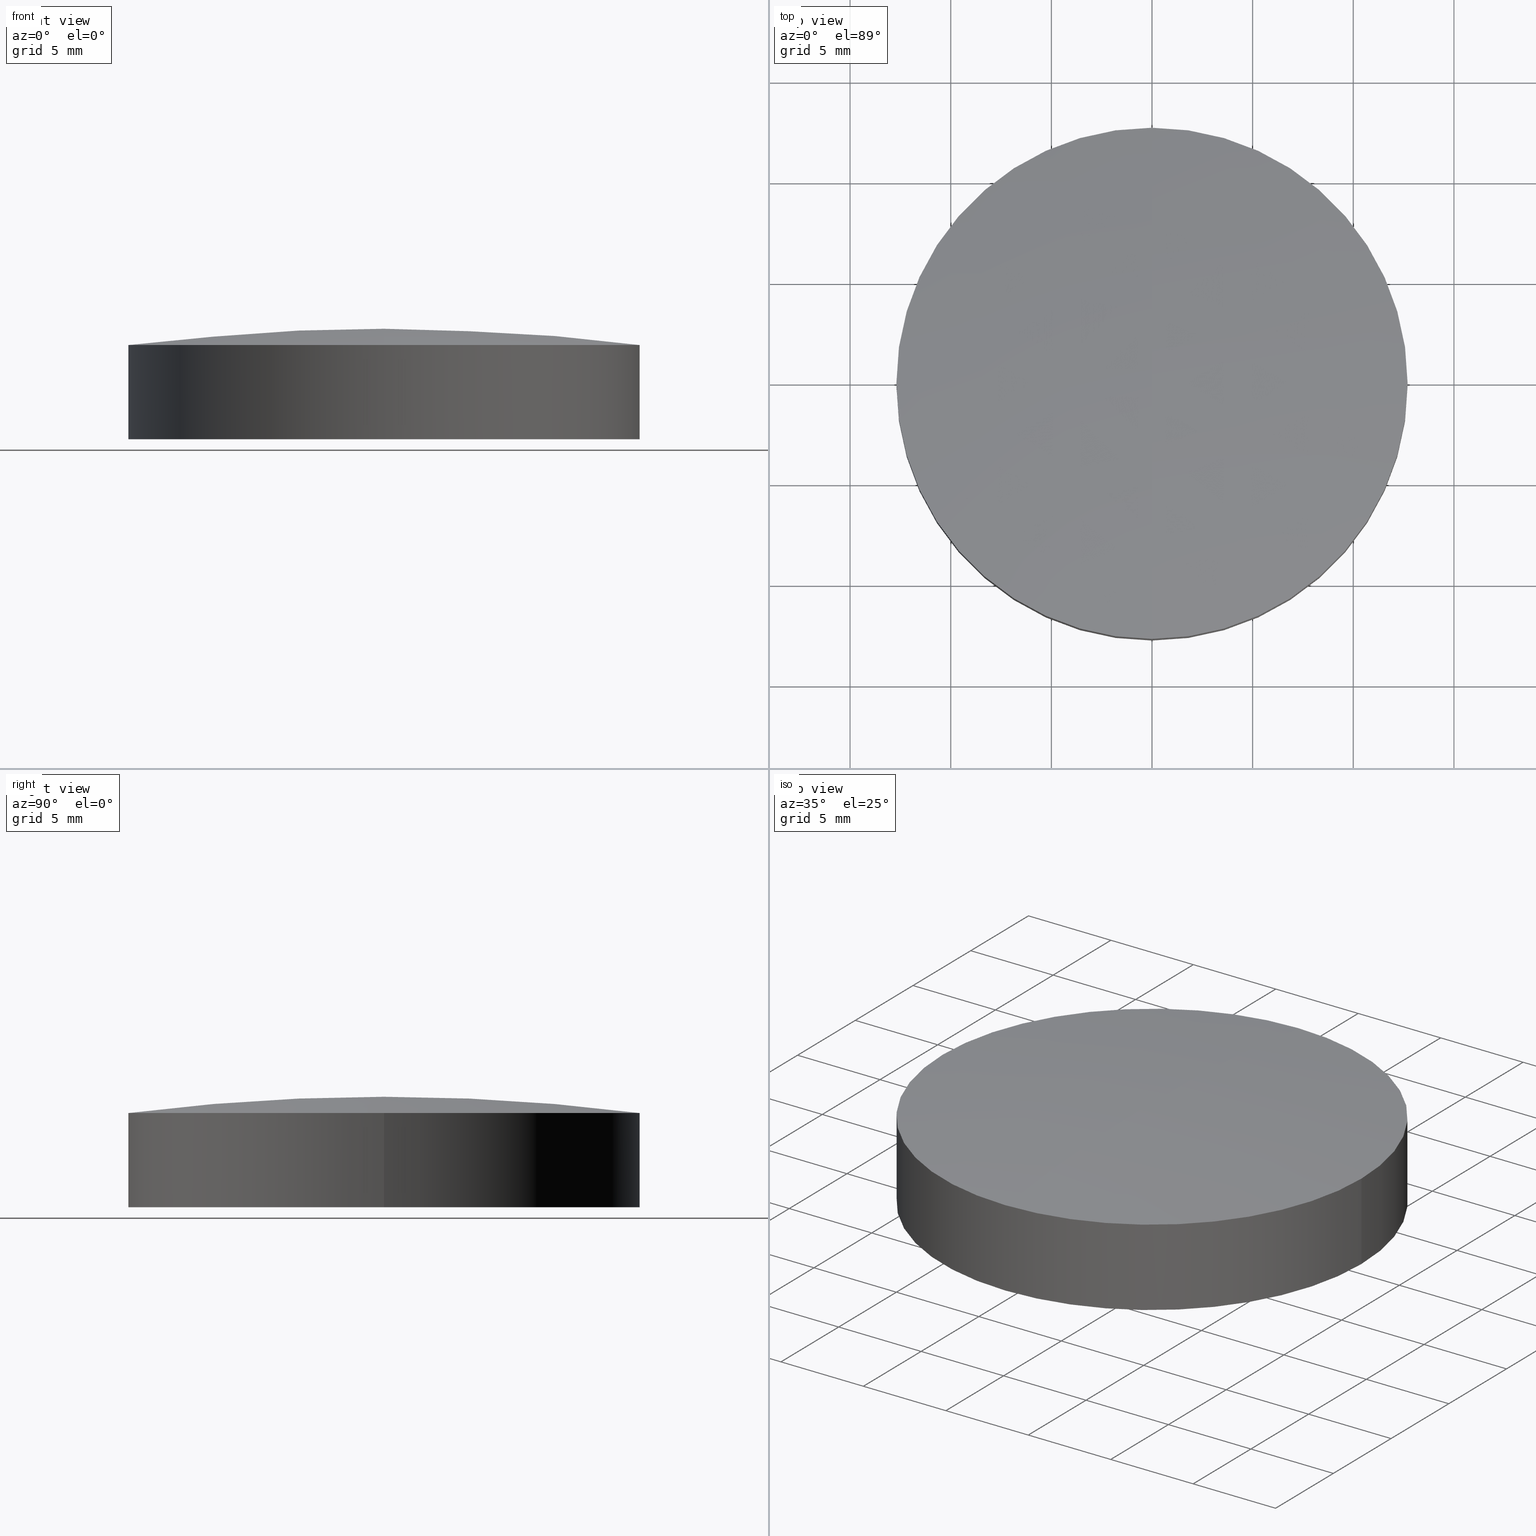
[diagram: canonical four-view strip — front | top / right | iso, engineering-drawing reading convention]
A machine part, canonical four-view strip (front | top / right | iso — engineering-drawing reading convention). The complete STEP part file that produces these views, byte-faithful:
ISO-10303-21;
HEADER;
FILE_DESCRIPTION (( 'STEP AP214' ),
    '1' );
FILE_NAME ('4887-E0W.STEP',
    '2009-12-21T17:10:23',
    ( ' ' ),
    ( ' ' ),
    'SwSTEP 2.0',
    'SolidWorks 2009',
    '' );
FILE_SCHEMA (( 'AUTOMOTIVE_DESIGN' ));
ENDSEC;

DATA;
#1 = SPHERICAL_SURFACE ( 'NONE', #3, 100.0000000000000000 ) ;
#2 = CIRCLE ( 'NONE', #4, 12.70000000000000100 ) ;
#3 = AXIS2_PLACEMENT_3D ( 'NONE', #5, #9, #8 ) ;
#4 = AXIS2_PLACEMENT_3D ( 'NONE', #10, #6, #7 ) ;
#5 = CARTESIAN_POINT ( 'NONE',  ( 0.0000000000000000000, 0.0000000000000000000, -97.25569719235952000 ) ) ;
#6 = DIRECTION ( 'NONE',  ( -0.0000000000000000000, -0.0000000000000000000, 1.000000000000000000 ) ) ;
#7 = DIRECTION ( 'NONE',  ( 1.000000000000000000, 0.0000000000000000000, 0.0000000000000000000 ) ) ;
#8 = DIRECTION ( 'NONE',  ( 0.0000000000000000000, 1.000000000000000000, 0.0000000000000000000 ) ) ;
#9 = DIRECTION ( 'NONE',  ( -1.000000000000000000, 0.0000000000000000000, 0.0000000000000000000 ) ) ;
#10 = CARTESIAN_POINT ( 'NONE',  ( 0.0000000000000000000, 0.0000000000000000000, 1.934574508044651300 ) ) ;
#11 = DIRECTION ( 'NONE',  ( 1.000000000000000000, 0.0000000000000000000, 0.0000000000000000000 ) ) ;
#12 = MECHANICAL_DESIGN_GEOMETRIC_PRESENTATION_REPRESENTATION (  '', ( #31 ), #157 ) ;
#13 = LINE ( 'NONE', #14, #16 ) ;
#14 = CARTESIAN_POINT ( 'NONE',  ( 12.70000000000000100, 0.0000000000000000000, 10.14940656248153400 ) ) ;
#15 = DIRECTION ( 'NONE',  ( -0.0000000000000000000, -0.0000000000000000000, 1.000000000000000000 ) ) ;
#16 = VECTOR ( 'NONE', #15, 1000.000000000000000 ) ;
#17 =( LENGTH_UNIT ( ) NAMED_UNIT ( * ) SI_UNIT ( .MILLI., .METRE. ) );
#18 =( NAMED_UNIT ( * ) PLANE_ANGLE_UNIT ( ) SI_UNIT ( $, .RADIAN. ) );
#19 = AXIS2_PLACEMENT_3D ( 'NONE', #21, #22, #11 ) ;
#20 = CIRCLE ( 'NONE', #19, 12.70000000000000100 ) ;
#21 = CARTESIAN_POINT ( 'NONE',  ( 0.0000000000000000000, 0.0000000000000000000, 1.934574508044651300 ) ) ;
#22 = DIRECTION ( 'NONE',  ( -0.0000000000000000000, -0.0000000000000000000, 1.000000000000000000 ) ) ;
#23 =( NAMED_UNIT ( * ) SI_UNIT ( $, .STERADIAN. ) SOLID_ANGLE_UNIT ( ) );
#24 = UNCERTAINTY_MEASURE_WITH_UNIT (LENGTH_MEASURE( 1.000000000000000100E-005 ), #17, 'distance_accuracy_value', 'NONE');
#25 = DIRECTION ( 'NONE',  ( -0.0000000000000000000, -0.0000000000000000000, 1.000000000000000000 ) ) ;
#26 = CARTESIAN_POINT ( 'NONE',  ( 0.0000000000000000000, 12.69999999999999200, 1.934574508044653700 ) ) ;
#27 = UNCERTAINTY_MEASURE_WITH_UNIT (LENGTH_MEASURE( 1.000000000000000100E-005 ), #50, 'distance_accuracy_value', 'NONE');
#28 =( NAMED_UNIT ( * ) SI_UNIT ( $, .STERADIAN. ) SOLID_ANGLE_UNIT ( ) );
#29 =( NAMED_UNIT ( * ) PLANE_ANGLE_UNIT ( ) SI_UNIT ( $, .RADIAN. ) );
#30 = PRESENTATION_LAYER_ASSIGNMENT (  '', '', ( #31 ) ) ;
#31 = STYLED_ITEM ( 'NONE', ( #32 ), #273 ) ;
#32 = PRESENTATION_STYLE_ASSIGNMENT (( #33 ) ) ;
#33 = SURFACE_STYLE_USAGE ( .BOTH. , #34 ) ;
#34 = SURFACE_SIDE_STYLE ('',( #35 ) ) ;
#35 = SURFACE_STYLE_FILL_AREA ( #36 ) ;
#36 = FILL_AREA_STYLE ('',( #42 ) ) ;
#37 = COLOUR_RGB ( '',0.9568627450980391500, 0.9490196078431372100, 0.9607843137254902200 ) ;
#38 = DIRECTION ( 'NONE',  ( 0.0000000000000000000, 1.000000000000000000, 0.0000000000000000000 ) ) ;
#39 = DIRECTION ( 'NONE',  ( -1.000000000000000000, 0.0000000000000000000, 0.0000000000000000000 ) ) ;
#40 = AXIS2_PLACEMENT_3D ( 'NONE', #64, #39, #38 ) ;
#41 = FACE_OUTER_BOUND ( 'NONE', #285, .T. ) ;
#42 = FILL_AREA_STYLE_COLOUR ( '', #37 ) ;
#43 = CIRCLE ( 'NONE', #63, 100.0000000000000000 ) ;
#44 = FILL_AREA_STYLE_COLOUR ( '', #74 ) ;
#45 = FACE_OUTER_BOUND ( 'NONE', #264, .T. ) ;
#46 = CARTESIAN_POINT ( 'NONE',  ( 0.0000000000000000000, 6.123031769111886300E-015, 2.744302807640486300 ) ) ;
#47 = CARTESIAN_POINT ( 'NONE',  ( -1.555250069354418500E-015, -12.69999999999999200, 1.934574508044653700 ) ) ;
#48 = DIRECTION ( 'NONE',  ( -1.224606353822377300E-016, -1.000000000000000000, 0.0000000000000000000 ) ) ;
#49 = DIRECTION ( 'NONE',  ( 1.000000000000000000, 0.0000000000000000000, 0.0000000000000000000 ) ) ;
#50 =( LENGTH_UNIT ( ) NAMED_UNIT ( * ) SI_UNIT ( .MILLI., .METRE. ) );
#51 = MECHANICAL_DESIGN_GEOMETRIC_PRESENTATION_REPRESENTATION (  '', ( #53 ), #66 ) ;
#52 = PRESENTATION_LAYER_ASSIGNMENT (  '', '', ( #53 ) ) ;
#53 = STYLED_ITEM ( 'NONE', ( #69 ), #271 ) ;
#54 = DIRECTION ( 'NONE',  ( -1.000000000000000000, 1.224606353822377300E-016, 0.0000000000000000000 ) ) ;
#55 = CARTESIAN_POINT ( 'NONE',  ( 0.0000000000000000000, 0.0000000000000000000, -97.25569719235952000 ) ) ;
#56 = AXIS2_PLACEMENT_3D ( 'NONE', #55, #54, #48 ) ;
#57 = CIRCLE ( 'NONE', #56, 100.0000000000000000 ) ;
#58 = AXIS2_PLACEMENT_3D ( 'NONE', #60, #25, #62 ) ;
#59 = CIRCLE ( 'NONE', #58, 12.70000000000000100 ) ;
#60 = CARTESIAN_POINT ( 'NONE',  ( 0.0000000000000000000, 0.0000000000000000000, 1.934574508044651300 ) ) ;
#61 = CARTESIAN_POINT ( 'NONE',  ( 12.70000000000000100, 0.0000000000000000000, 1.934574508044651300 ) ) ;
#62 = DIRECTION ( 'NONE',  ( 1.000000000000000000, 0.0000000000000000000, 0.0000000000000000000 ) ) ;
#63 = AXIS2_PLACEMENT_3D ( 'NONE', #68, #49, #67 ) ;
#64 = CARTESIAN_POINT ( 'NONE',  ( 0.0000000000000000000, 0.0000000000000000000, -97.25569719235952000 ) ) ;
#65 = SPHERICAL_SURFACE ( 'NONE', #40, 100.0000000000000000 ) ;
#66 =( GEOMETRIC_REPRESENTATION_CONTEXT ( 3 ) GLOBAL_UNCERTAINTY_ASSIGNED_CONTEXT ( ( #27 ) ) GLOBAL_UNIT_ASSIGNED_CONTEXT ( ( #50, #29, #28 ) ) REPRESENTATION_CONTEXT ( 'NONE', 'WORKASPACE' ) );
#67 = DIRECTION ( 'NONE',  ( 0.0000000000000000000, 0.0000000000000000000, -1.000000000000000000 ) ) ;
#68 = CARTESIAN_POINT ( 'NONE',  ( 0.0000000000000000000, 0.0000000000000000000, -97.25569719235952000 ) ) ;
#69 = PRESENTATION_STYLE_ASSIGNMENT (( #70 ) ) ;
#70 = SURFACE_STYLE_USAGE ( .BOTH. , #71 ) ;
#71 = SURFACE_SIDE_STYLE ('',( #72 ) ) ;
#72 = SURFACE_STYLE_FILL_AREA ( #73 ) ;
#73 = FILL_AREA_STYLE ('',( #44 ) ) ;
#74 = COLOUR_RGB ( '',0.9568627450980391500, 0.9490196078431372100, 0.9607843137254902200 ) ;
#75 = DIRECTION ( 'NONE',  ( 1.000000000000000000, 0.0000000000000000000, 0.0000000000000000000 ) ) ;
#76 = DIRECTION ( 'NONE',  ( -0.0000000000000000000, -0.0000000000000000000, 1.000000000000000000 ) ) ;
#77 = CARTESIAN_POINT ( 'NONE',  ( 0.0000000000000000000, 0.0000000000000000000, 1.934574508044651300 ) ) ;
#78 = AXIS2_PLACEMENT_3D ( 'NONE', #77, #76, #75 ) ;
#79 = CIRCLE ( 'NONE', #78, 12.70000000000000100 ) ;
#80 = CYLINDRICAL_SURFACE ( 'NONE', #90, 12.70000000000000100 ) ;
#81 =( GEOMETRIC_REPRESENTATION_CONTEXT ( 3 ) GLOBAL_UNCERTAINTY_ASSIGNED_CONTEXT ( ( #138 ) ) GLOBAL_UNIT_ASSIGNED_CONTEXT ( ( #169, #161, #139 ) ) REPRESENTATION_CONTEXT ( 'NONE', 'WORKASPACE' ) );
#82 =( LENGTH_UNIT ( ) NAMED_UNIT ( * ) SI_UNIT ( .MILLI., .METRE. ) );
#83 = MECHANICAL_DESIGN_GEOMETRIC_PRESENTATION_REPRESENTATION (  '', ( #85 ), #152 ) ;
#84 = PRESENTATION_LAYER_ASSIGNMENT (  '', '', ( #85 ) ) ;
#85 = STYLED_ITEM ( 'NONE', ( #100 ), #284 ) ;
#86 = DIRECTION ( 'NONE',  ( -1.000000000000000000, 1.224606353822377300E-016, 0.0000000000000000000 ) ) ;
#87 = DIRECTION ( 'NONE',  ( 1.000000000000000000, 0.0000000000000000000, 0.0000000000000000000 ) ) ;
#88 = DIRECTION ( 'NONE',  ( -0.0000000000000000000, -0.0000000000000000000, 1.000000000000000000 ) ) ;
#89 = CARTESIAN_POINT ( 'NONE',  ( 0.0000000000000000000, 0.0000000000000000000, 10.14940656248153400 ) ) ;
#90 = AXIS2_PLACEMENT_3D ( 'NONE', #89, #88, #87 ) ;
#91 = CARTESIAN_POINT ( 'NONE',  ( 0.0000000000000000000, 0.0000000000000000000, -33.90569719235953300 ) ) ;
#92 = AXIS2_PLACEMENT_3D ( 'NONE', #91, #86, #129 ) ;
#93 = CIRCLE ( 'NONE', #137, 12.70000000000000100 ) ;
#94 = DIRECTION ( 'NONE',  ( 1.000000000000000000, 0.0000000000000000000, 0.0000000000000000000 ) ) ;
#95 = DIRECTION ( 'NONE',  ( -0.0000000000000000000, -0.0000000000000000000, 1.000000000000000000 ) ) ;
#96 = CARTESIAN_POINT ( 'NONE',  ( 0.0000000000000000000, 0.0000000000000000000, -2.744302807640479200 ) ) ;
#97 = AXIS2_PLACEMENT_3D ( 'NONE', #96, #95, #94 ) ;
#98 = CIRCLE ( 'NONE', #97, 12.70000000000000100 ) ;
#99 =( NAMED_UNIT ( * ) PLANE_ANGLE_UNIT ( ) SI_UNIT ( $, .RADIAN. ) );
#100 = PRESENTATION_STYLE_ASSIGNMENT (( #101 ) ) ;
#101 = SURFACE_STYLE_USAGE ( .BOTH. , #102 ) ;
#102 = SURFACE_SIDE_STYLE ('',( #103 ) ) ;
#103 = SURFACE_STYLE_FILL_AREA ( #104 ) ;
#104 = FILL_AREA_STYLE ('',( #105 ) ) ;
#105 = FILL_AREA_STYLE_COLOUR ( '', #106 ) ;
#106 = COLOUR_RGB ( '',0.7960784313725489700, 0.8235294117647058400, 0.9372549019607843100 ) ;
#107 = CARTESIAN_POINT ( 'NONE',  ( 0.0000000000000000000, 12.69999999999999900, -2.744302807640481000 ) ) ;
#108 =( LENGTH_UNIT ( ) NAMED_UNIT ( * ) SI_UNIT ( .MILLI., .METRE. ) );
#109 = MECHANICAL_DESIGN_GEOMETRIC_PRESENTATION_REPRESENTATION (  '', ( #111 ), #174 ) ;
#110 = PRESENTATION_LAYER_ASSIGNMENT (  '', '', ( #111 ) ) ;
#111 = STYLED_ITEM ( 'NONE', ( #112 ), #130 ) ;
#112 = PRESENTATION_STYLE_ASSIGNMENT (( #113 ) ) ;
#113 = SURFACE_STYLE_USAGE ( .BOTH. , #114 ) ;
#114 = SURFACE_SIDE_STYLE ('',( #115 ) ) ;
#115 = SURFACE_STYLE_FILL_AREA ( #116 ) ;
#116 = FILL_AREA_STYLE ('',( #117 ) ) ;
#117 = FILL_AREA_STYLE_COLOUR ( '', #118 ) ;
#118 = COLOUR_RGB ( '',0.7960784313725489700, 0.8235294117647058400, 0.9372549019607843100 ) ;
#119 = UNCERTAINTY_MEASURE_WITH_UNIT (LENGTH_MEASURE( 1.000000000000000100E-005 ), #122, 'distance_accuracy_value', 'NONE');
#120 =( NAMED_UNIT ( * ) SI_UNIT ( $, .STERADIAN. ) SOLID_ANGLE_UNIT ( ) );
#121 =( NAMED_UNIT ( * ) PLANE_ANGLE_UNIT ( ) SI_UNIT ( $, .RADIAN. ) );
#122 =( LENGTH_UNIT ( ) NAMED_UNIT ( * ) SI_UNIT ( .MILLI., .METRE. ) );
#123 = CARTESIAN_POINT ( 'NONE',  ( 0.0000000000000000000, 0.0000000000000000000, -2.744302807640479200 ) ) ;
#124 = CARTESIAN_POINT ( 'NONE',  ( 12.70000000000000100, 0.0000000000000000000, -2.744302807640479200 ) ) ;
#125 = CIRCLE ( 'NONE', #165, 12.70000000000000100 ) ;
#126 = UNCERTAINTY_MEASURE_WITH_UNIT (LENGTH_MEASURE( 1.000000000000000100E-005 ), #82, 'distance_accuracy_value', 'NONE');
#127 =( NAMED_UNIT ( * ) SI_UNIT ( $, .STERADIAN. ) SOLID_ANGLE_UNIT ( ) );
#128 = CARTESIAN_POINT ( 'NONE',  ( -1.555250069354419300E-015, -12.69999999999999900, -2.744302807640481000 ) ) ;
#129 = DIRECTION ( 'NONE',  ( -1.224606353822377300E-016, -1.000000000000000000, 0.0000000000000000000 ) ) ;
#130 = ADVANCED_BREP_SHAPE_REPRESENTATION ( '4887-E0W', ( #284, #182 ), #131 ) ;
#131 =( GEOMETRIC_REPRESENTATION_CONTEXT ( 3 ) GLOBAL_UNCERTAINTY_ASSIGNED_CONTEXT ( ( #119 ) ) GLOBAL_UNIT_ASSIGNED_CONTEXT ( ( #122, #121, #120 ) ) REPRESENTATION_CONTEXT ( 'NONE', 'WORKASPACE' ) );
#132 = CARTESIAN_POINT ( 'NONE',  ( -12.70000000000000100, 1.555250069354419300E-015, 1.934574508044651300 ) ) ;
#133 = CARTESIAN_POINT ( 'NONE',  ( -12.70000000000000100, 1.555250069354419300E-015, -2.744302807640479200 ) ) ;
#134 = DIRECTION ( 'NONE',  ( 1.000000000000000000, 0.0000000000000000000, 0.0000000000000000000 ) ) ;
#135 = DIRECTION ( 'NONE',  ( -0.0000000000000000000, -0.0000000000000000000, 1.000000000000000000 ) ) ;
#136 = CARTESIAN_POINT ( 'NONE',  ( 0.0000000000000000000, 0.0000000000000000000, -2.744302807640479200 ) ) ;
#137 = AXIS2_PLACEMENT_3D ( 'NONE', #136, #135, #134 ) ;
#138 = UNCERTAINTY_MEASURE_WITH_UNIT (LENGTH_MEASURE( 1.000000000000000100E-005 ), #169, 'distance_accuracy_value', 'NONE');
#139 =( NAMED_UNIT ( * ) SI_UNIT ( $, .STERADIAN. ) SOLID_ANGLE_UNIT ( ) );
#140 = CIRCLE ( 'NONE', #156, 33.64999999999999900 ) ;
#141 = SURFACE_STYLE_USAGE ( .BOTH. , #142 ) ;
#142 = SURFACE_SIDE_STYLE ('',( #143 ) ) ;
#143 = SURFACE_STYLE_FILL_AREA ( #144 ) ;
#144 = FILL_AREA_STYLE ('',( #164 ) ) ;
#145 = COLOUR_RGB ( '',0.9568627450980391500, 0.9490196078431372100, 0.9607843137254902200 ) ;
#146 = FACE_OUTER_BOUND ( 'NONE', #288, .T. ) ;
#147 = DIRECTION ( 'NONE',  ( -0.0000000000000000000, -0.0000000000000000000, 1.000000000000000000 ) ) ;
#148 = VECTOR ( 'NONE', #147, 1000.000000000000000 ) ;
#149 = DIRECTION ( 'NONE',  ( -0.0000000000000000000, -0.0000000000000000000, 1.000000000000000000 ) ) ;
#150 = DIRECTION ( 'NONE',  ( 0.0000000000000000000, 1.000000000000000000, 0.0000000000000000000 ) ) ;
#151 = AXIS2_PLACEMENT_3D ( 'NONE', #166, #158, #150 ) ;
#152 =( GEOMETRIC_REPRESENTATION_CONTEXT ( 3 ) GLOBAL_UNCERTAINTY_ASSIGNED_CONTEXT ( ( #126 ) ) GLOBAL_UNIT_ASSIGNED_CONTEXT ( ( #82, #99, #127 ) ) REPRESENTATION_CONTEXT ( 'NONE', 'WORKASPACE' ) );
#153 = DIRECTION ( 'NONE',  ( 0.0000000000000000000, 0.0000000000000000000, -1.000000000000000000 ) ) ;
#154 = DIRECTION ( 'NONE',  ( 1.000000000000000000, -0.0000000000000000000, 0.0000000000000000000 ) ) ;
#155 = CARTESIAN_POINT ( 'NONE',  ( 0.0000000000000000000, 0.0000000000000000000, -33.90569719235953300 ) ) ;
#156 = AXIS2_PLACEMENT_3D ( 'NONE', #155, #154, #153 ) ;
#157 =( GEOMETRIC_REPRESENTATION_CONTEXT ( 3 ) GLOBAL_UNCERTAINTY_ASSIGNED_CONTEXT ( ( #24 ) ) GLOBAL_UNIT_ASSIGNED_CONTEXT ( ( #17, #18, #23 ) ) REPRESENTATION_CONTEXT ( 'NONE', 'WORKASPACE' ) );
#158 = DIRECTION ( 'NONE',  ( -1.000000000000000000, 0.0000000000000000000, 0.0000000000000000000 ) ) ;
#159 = CARTESIAN_POINT ( 'NONE',  ( 0.0000000000000000000, 2.060400190306149500E-015, -0.2556971923595302600 ) ) ;
#160 = SPHERICAL_SURFACE ( 'NONE', #151, 33.64999999999999900 ) ;
#161 =( NAMED_UNIT ( * ) PLANE_ANGLE_UNIT ( ) SI_UNIT ( $, .RADIAN. ) );
#162 = CARTESIAN_POINT ( 'NONE',  ( -12.70000000000000100, 1.555250069354419300E-015, 10.14940656248153400 ) ) ;
#163 = LINE ( 'NONE', #162, #148 ) ;
#164 = FILL_AREA_STYLE_COLOUR ( '', #145 ) ;
#165 = AXIS2_PLACEMENT_3D ( 'NONE', #123, #149, #168 ) ;
#166 = CARTESIAN_POINT ( 'NONE',  ( 0.0000000000000000000, 0.0000000000000000000, -33.90569719235953300 ) ) ;
#167 = CIRCLE ( 'NONE', #92, 33.64999999999999900 ) ;
#168 = DIRECTION ( 'NONE',  ( 1.000000000000000000, 0.0000000000000000000, 0.0000000000000000000 ) ) ;
#169 =( LENGTH_UNIT ( ) NAMED_UNIT ( * ) SI_UNIT ( .MILLI., .METRE. ) );
#170 = MECHANICAL_DESIGN_GEOMETRIC_PRESENTATION_REPRESENTATION (  '', ( #172 ), #81 ) ;
#171 = PRESENTATION_LAYER_ASSIGNMENT (  '', '', ( #172 ) ) ;
#172 = STYLED_ITEM ( 'NONE', ( #173 ), #287 ) ;
#173 = PRESENTATION_STYLE_ASSIGNMENT (( #141 ) ) ;
#174 =( GEOMETRIC_REPRESENTATION_CONTEXT ( 3 ) GLOBAL_UNCERTAINTY_ASSIGNED_CONTEXT ( ( #190 ) ) GLOBAL_UNIT_ASSIGNED_CONTEXT ( ( #108, #189, #191 ) ) REPRESENTATION_CONTEXT ( 'NONE', 'WORKASPACE' ) );
#175 = PRODUCT_DEFINITION_SHAPE ( 'NONE', 'NONE',  #178 ) ;
#176 = PRODUCT_RELATED_PRODUCT_CATEGORY ( 'part', '', ( #183 ) ) ;
#177 = PRODUCT_DEFINITION_FORMATION_WITH_SPECIFIED_SOURCE ( 'ANY', '', #183, .NOT_KNOWN. ) ;
#178 = PRODUCT_DEFINITION ( 'UNKNOWN', '', #177, #179 ) ;
#179 = PRODUCT_DEFINITION_CONTEXT ( 'detailed design', #181, 'design' ) ;
#180 = APPLICATION_PROTOCOL_DEFINITION ( 'draft international standard', 'automotive_design', 1998, #181 ) ;
#181 = APPLICATION_CONTEXT ( 'automotive_design' ) ;
#182 = AXIS2_PLACEMENT_3D ( 'NONE', #193, #192, #187 ) ;
#183 = PRODUCT ( '4887-E0W', '4887-E0W', '', ( #184 ) ) ;
#184 = PRODUCT_CONTEXT ( 'NONE', #188, 'mechanical' ) ;
#185 = APPLICATION_PROTOCOL_DEFINITION ( 'draft international standard', 'automotive_design', 1998, #188 ) ;
#186 = SHAPE_DEFINITION_REPRESENTATION ( #175, #130 ) ;
#187 = DIRECTION ( 'NONE',  ( 1.000000000000000000, 0.0000000000000000000, 0.0000000000000000000 ) ) ;
#188 = APPLICATION_CONTEXT ( 'automotive_design' ) ;
#189 =( NAMED_UNIT ( * ) PLANE_ANGLE_UNIT ( ) SI_UNIT ( $, .RADIAN. ) );
#190 = UNCERTAINTY_MEASURE_WITH_UNIT (LENGTH_MEASURE( 1.000000000000000100E-005 ), #108, 'distance_accuracy_value', 'NONE');
#191 =( NAMED_UNIT ( * ) SI_UNIT ( $, .STERADIAN. ) SOLID_ANGLE_UNIT ( ) );
#192 = DIRECTION ( 'NONE',  ( 0.0000000000000000000, 0.0000000000000000000, 1.000000000000000000 ) ) ;
#193 = CARTESIAN_POINT ( 'NONE',  ( 0.0000000000000000000, 0.0000000000000000000, 0.0000000000000000000 ) ) ;
#194 =( LENGTH_UNIT ( ) NAMED_UNIT ( * ) SI_UNIT ( .MILLI., .METRE. ) );
#195 = MECHANICAL_DESIGN_GEOMETRIC_PRESENTATION_REPRESENTATION (  '', ( #296 ), #199 ) ;
#196 =( NAMED_UNIT ( * ) PLANE_ANGLE_UNIT ( ) SI_UNIT ( $, .RADIAN. ) );
#197 =( NAMED_UNIT ( * ) SI_UNIT ( $, .STERADIAN. ) SOLID_ANGLE_UNIT ( ) );
#198 = UNCERTAINTY_MEASURE_WITH_UNIT (LENGTH_MEASURE( 1.000000000000000100E-005 ), #194, 'distance_accuracy_value', 'NONE');
#199 =( GEOMETRIC_REPRESENTATION_CONTEXT ( 3 ) GLOBAL_UNCERTAINTY_ASSIGNED_CONTEXT ( ( #198 ) ) GLOBAL_UNIT_ASSIGNED_CONTEXT ( ( #194, #196, #197 ) ) REPRESENTATION_CONTEXT ( 'NONE', 'WORKASPACE' ) );
#200 = MECHANICAL_DESIGN_GEOMETRIC_PRESENTATION_REPRESENTATION (  '', ( #202 ), #253 ) ;
#201 = PRESENTATION_LAYER_ASSIGNMENT (  '', '', ( #202 ) ) ;
#202 = STYLED_ITEM ( 'NONE', ( #203 ), #213 ) ;
#203 = PRESENTATION_STYLE_ASSIGNMENT (( #204 ) ) ;
#204 = SURFACE_STYLE_USAGE ( .BOTH. , #205 ) ;
#205 = SURFACE_SIDE_STYLE ('',( #206 ) ) ;
#206 = SURFACE_STYLE_FILL_AREA ( #207 ) ;
#207 = FILL_AREA_STYLE ('',( #208 ) ) ;
#208 = FILL_AREA_STYLE_COLOUR ( '', #209 ) ;
#209 = COLOUR_RGB ( '',0.9568627450980391500, 0.9490196078431372100, 0.9607843137254902200 ) ;
#210 = FACE_OUTER_BOUND ( 'NONE', #214, .T. ) ;
#211 = ORIENTED_EDGE ( 'NONE', *, *, #290, .F. ) ;
#212 = ORIENTED_EDGE ( 'NONE', *, *, #238, .F. ) ;
#213 = ADVANCED_FACE ( 'NONE', ( #210 ), #252, .F. ) ;
#214 = EDGE_LOOP ( 'NONE', ( #215, #219, #211, #217 ) ) ;
#215 = ORIENTED_EDGE ( 'NONE', *, *, #279, .F. ) ;
#216 = ORIENTED_EDGE ( 'NONE', *, *, #227, .F. ) ;
#217 = ORIENTED_EDGE ( 'NONE', *, *, #282, .T. ) ;
#218 = CLOSED_SHELL ( 'NONE', ( #273, #287, #226, #271, #220, #213 ) ) ;
#219 = ORIENTED_EDGE ( 'NONE', *, *, #224, .F. ) ;
#220 = ADVANCED_FACE ( 'NONE', ( #251 ), #314, .T. ) ;
#221 = EDGE_LOOP ( 'NONE', ( #222, #223, #225, #258, #216, #212 ) ) ;
#222 = ORIENTED_EDGE ( 'NONE', *, *, #286, .F. ) ;
#223 = ORIENTED_EDGE ( 'NONE', *, *, #224, .T. ) ;
#224 = EDGE_CURVE ( 'NONE', #291, #276, #308, .T. ) ;
#225 = ORIENTED_EDGE ( 'NONE', *, *, #275, .T. ) ;
#226 = ADVANCED_FACE ( 'NONE', ( #303 ), #1, .T. ) ;
#227 = EDGE_CURVE ( 'NONE', #266, #262, #2, .T. ) ;
#228 = ORIENTED_EDGE ( 'NONE', *, *, #263, .T. ) ;
#229 = ORIENTED_EDGE ( 'NONE', *, *, #236, .F. ) ;
#230 = ORIENTED_EDGE ( 'NONE', *, *, #263, .F. ) ;
#231 = EDGE_CURVE ( 'NONE', #237, #322, #20, .T. ) ;
#232 = ORIENTED_EDGE ( 'NONE', *, *, #238, .T. ) ;
#233 = ORIENTED_EDGE ( 'NONE', *, *, #234, .F. ) ;
#234 = EDGE_CURVE ( 'NONE', #277, #262, #13, .T. ) ;
#235 = ORIENTED_EDGE ( 'NONE', *, *, #270, .F. ) ;
#236 = EDGE_CURVE ( 'NONE', #237, #267, #43, .T. ) ;
#237 = VERTEX_POINT ( 'NONE', #26 ) ;
#238 = EDGE_CURVE ( 'NONE', #322, #266, #59, .T. ) ;
#239 = STYLED_ITEM ( 'NONE', ( #240 ), #220 ) ;
#240 = PRESENTATION_STYLE_ASSIGNMENT (( #241 ) ) ;
#241 = SURFACE_STYLE_USAGE ( .BOTH. , #242 ) ;
#242 = SURFACE_SIDE_STYLE ('',( #243 ) ) ;
#243 = SURFACE_STYLE_FILL_AREA ( #244 ) ;
#244 = FILL_AREA_STYLE ('',( #245 ) ) ;
#245 = FILL_AREA_STYLE_COLOUR ( '', #250 ) ;
#246 = DIRECTION ( 'NONE',  ( 0.0000000000000000000, 1.000000000000000000, 0.0000000000000000000 ) ) ;
#247 = DIRECTION ( 'NONE',  ( -1.000000000000000000, 0.0000000000000000000, 0.0000000000000000000 ) ) ;
#248 = CARTESIAN_POINT ( 'NONE',  ( 0.0000000000000000000, 0.0000000000000000000, -33.90569719235953300 ) ) ;
#249 = AXIS2_PLACEMENT_3D ( 'NONE', #248, #247, #246 ) ;
#250 = COLOUR_RGB ( '',0.9568627450980391500, 0.9490196078431372100, 0.9607843137254902200 ) ;
#251 = FACE_OUTER_BOUND ( 'NONE', #221, .T. ) ;
#252 = SPHERICAL_SURFACE ( 'NONE', #249, 33.64999999999999900 ) ;
#253 =( GEOMETRIC_REPRESENTATION_CONTEXT ( 3 ) GLOBAL_UNCERTAINTY_ASSIGNED_CONTEXT ( ( #254 ) ) GLOBAL_UNIT_ASSIGNED_CONTEXT ( ( #257, #256, #255 ) ) REPRESENTATION_CONTEXT ( 'NONE', 'WORKASPACE' ) );
#254 = UNCERTAINTY_MEASURE_WITH_UNIT (LENGTH_MEASURE( 1.000000000000000100E-005 ), #257, 'distance_accuracy_value', 'NONE');
#255 =( NAMED_UNIT ( * ) SI_UNIT ( $, .STERADIAN. ) SOLID_ANGLE_UNIT ( ) );
#256 =( NAMED_UNIT ( * ) PLANE_ANGLE_UNIT ( ) SI_UNIT ( $, .RADIAN. ) );
#257 =( LENGTH_UNIT ( ) NAMED_UNIT ( * ) SI_UNIT ( .MILLI., .METRE. ) );
#258 = ORIENTED_EDGE ( 'NONE', *, *, #234, .T. ) ;
#259 = ORIENTED_EDGE ( 'NONE', *, *, #286, .T. ) ;
#260 = ORIENTED_EDGE ( 'NONE', *, *, #289, .F. ) ;
#261 = ORIENTED_EDGE ( 'NONE', *, *, #227, .T. ) ;
#262 = VERTEX_POINT ( 'NONE', #61 ) ;
#263 = EDGE_CURVE ( 'NONE', #266, #267, #57, .T. ) ;
#264 = EDGE_LOOP ( 'NONE', ( #230, #261, #265, #272 ) ) ;
#265 = ORIENTED_EDGE ( 'NONE', *, *, #270, .T. ) ;
#266 = VERTEX_POINT ( 'NONE', #47 ) ;
#267 = VERTEX_POINT ( 'NONE', #46 ) ;
#268 = ORIENTED_EDGE ( 'NONE', *, *, #231, .T. ) ;
#269 = EDGE_LOOP ( 'NONE', ( #268, #232, #228, #229 ) ) ;
#270 = EDGE_CURVE ( 'NONE', #262, #237, #79, .T. ) ;
#271 = ADVANCED_FACE ( 'NONE', ( #45 ), #65, .T. ) ;
#272 = ORIENTED_EDGE ( 'NONE', *, *, #236, .T. ) ;
#273 = ADVANCED_FACE ( 'NONE', ( #41 ), #160, .F. ) ;
#274 = ORIENTED_EDGE ( 'NONE', *, *, #275, .F. ) ;
#275 = EDGE_CURVE ( 'NONE', #276, #277, #125, .T. ) ;
#276 = VERTEX_POINT ( 'NONE', #128 ) ;
#277 = VERTEX_POINT ( 'NONE', #124 ) ;
#278 = ORIENTED_EDGE ( 'NONE', *, *, #279, .T. ) ;
#279 = EDGE_CURVE ( 'NONE', #276, #280, #167, .T. ) ;
#280 = VERTEX_POINT ( 'NONE', #159 ) ;
#281 = ORIENTED_EDGE ( 'NONE', *, *, #282, .F. ) ;
#282 = EDGE_CURVE ( 'NONE', #283, #280, #140, .T. ) ;
#283 = VERTEX_POINT ( 'NONE', #107 ) ;
#284 = MANIFOLD_SOLID_BREP ( 'NONE', #218 ) ;
#285 = EDGE_LOOP ( 'NONE', ( #274, #278, #281, #260 ) ) ;
#286 = EDGE_CURVE ( 'NONE', #291, #322, #163, .T. ) ;
#287 = ADVANCED_FACE ( 'NONE', ( #146 ), #80, .T. ) ;
#288 = EDGE_LOOP ( 'NONE', ( #292, #293, #259, #294, #235, #233 ) ) ;
#289 = EDGE_CURVE ( 'NONE', #277, #283, #98, .T. ) ;
#290 = EDGE_CURVE ( 'NONE', #283, #291, #93, .T. ) ;
#291 = VERTEX_POINT ( 'NONE', #133 ) ;
#292 = ORIENTED_EDGE ( 'NONE', *, *, #289, .T. ) ;
#293 = ORIENTED_EDGE ( 'NONE', *, *, #290, .T. ) ;
#294 = ORIENTED_EDGE ( 'NONE', *, *, #231, .F. ) ;
#295 = PRESENTATION_LAYER_ASSIGNMENT (  '', '', ( #296 ) ) ;
#296 = STYLED_ITEM ( 'NONE', ( #297 ), #226 ) ;
#297 = PRESENTATION_STYLE_ASSIGNMENT (( #298 ) ) ;
#298 = SURFACE_STYLE_USAGE ( .BOTH. , #299 ) ;
#299 = SURFACE_SIDE_STYLE ('',( #300 ) ) ;
#300 = SURFACE_STYLE_FILL_AREA ( #301 ) ;
#301 = FILL_AREA_STYLE ('',( #309 ) ) ;
#302 = COLOUR_RGB ( '',0.9568627450980391500, 0.9490196078431372100, 0.9607843137254902200 ) ;
#303 = FACE_OUTER_BOUND ( 'NONE', #269, .T. ) ;
#304 = DIRECTION ( 'NONE',  ( 1.000000000000000000, 0.0000000000000000000, 0.0000000000000000000 ) ) ;
#305 = DIRECTION ( 'NONE',  ( -0.0000000000000000000, -0.0000000000000000000, 1.000000000000000000 ) ) ;
#306 = CARTESIAN_POINT ( 'NONE',  ( 0.0000000000000000000, 0.0000000000000000000, -2.744302807640479200 ) ) ;
#307 = AXIS2_PLACEMENT_3D ( 'NONE', #306, #305, #304 ) ;
#308 = CIRCLE ( 'NONE', #307, 12.70000000000000100 ) ;
#309 = FILL_AREA_STYLE_COLOUR ( '', #302 ) ;
#310 = DIRECTION ( 'NONE',  ( 1.000000000000000000, 0.0000000000000000000, 0.0000000000000000000 ) ) ;
#311 = DIRECTION ( 'NONE',  ( -0.0000000000000000000, -0.0000000000000000000, 1.000000000000000000 ) ) ;
#312 = CARTESIAN_POINT ( 'NONE',  ( 0.0000000000000000000, 0.0000000000000000000, 10.14940656248153400 ) ) ;
#313 = AXIS2_PLACEMENT_3D ( 'NONE', #312, #311, #310 ) ;
#314 = CYLINDRICAL_SURFACE ( 'NONE', #313, 12.70000000000000100 ) ;
#315 =( GEOMETRIC_REPRESENTATION_CONTEXT ( 3 ) GLOBAL_UNCERTAINTY_ASSIGNED_CONTEXT ( ( #316 ) ) GLOBAL_UNIT_ASSIGNED_CONTEXT ( ( #319, #318, #317 ) ) REPRESENTATION_CONTEXT ( 'NONE', 'WORKASPACE' ) );
#316 = UNCERTAINTY_MEASURE_WITH_UNIT (LENGTH_MEASURE( 1.000000000000000100E-005 ), #319, 'distance_accuracy_value', 'NONE');
#317 =( NAMED_UNIT ( * ) SI_UNIT ( $, .STERADIAN. ) SOLID_ANGLE_UNIT ( ) );
#318 =( NAMED_UNIT ( * ) PLANE_ANGLE_UNIT ( ) SI_UNIT ( $, .RADIAN. ) );
#319 =( LENGTH_UNIT ( ) NAMED_UNIT ( * ) SI_UNIT ( .MILLI., .METRE. ) );
#320 = MECHANICAL_DESIGN_GEOMETRIC_PRESENTATION_REPRESENTATION (  '', ( #239 ), #315 ) ;
#321 = PRESENTATION_LAYER_ASSIGNMENT (  '', '', ( #239 ) ) ;
#322 = VERTEX_POINT ( 'NONE', #132 ) ;
ENDSEC;
END-ISO-10303-21;
